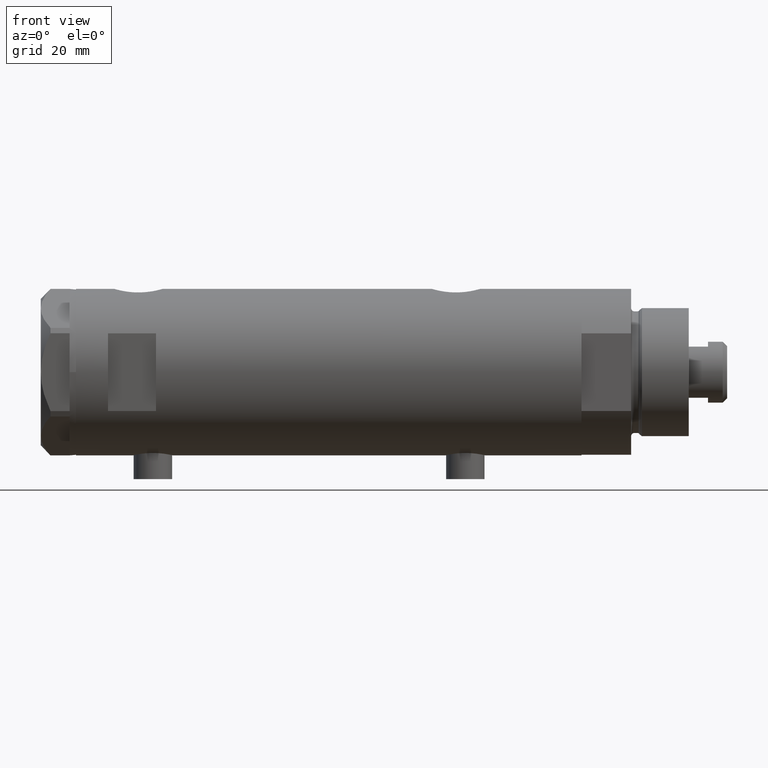
[diagram: clean part render]
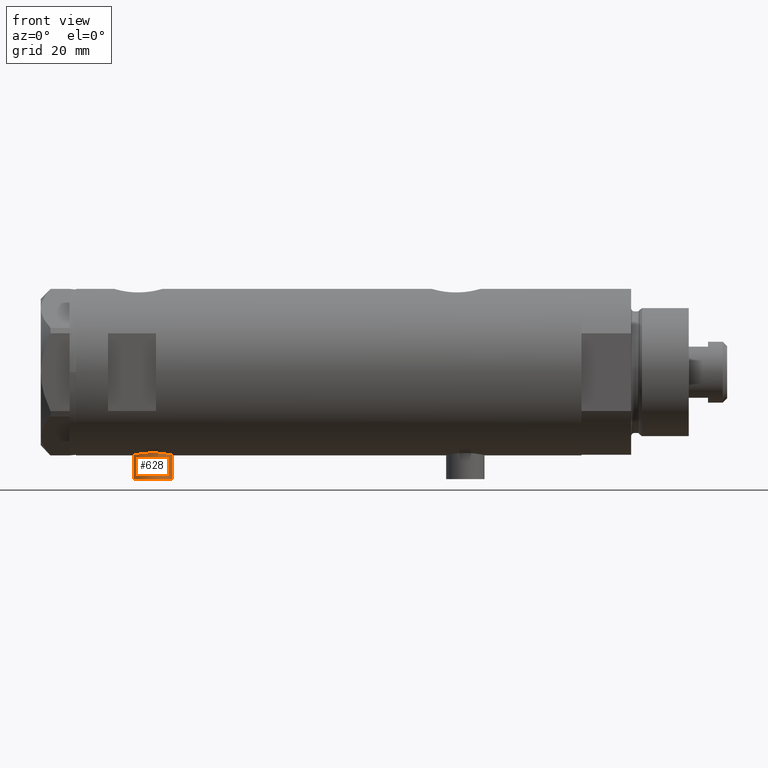
[diagram: same view with one face highlighted and labeled with its STEP entity id]
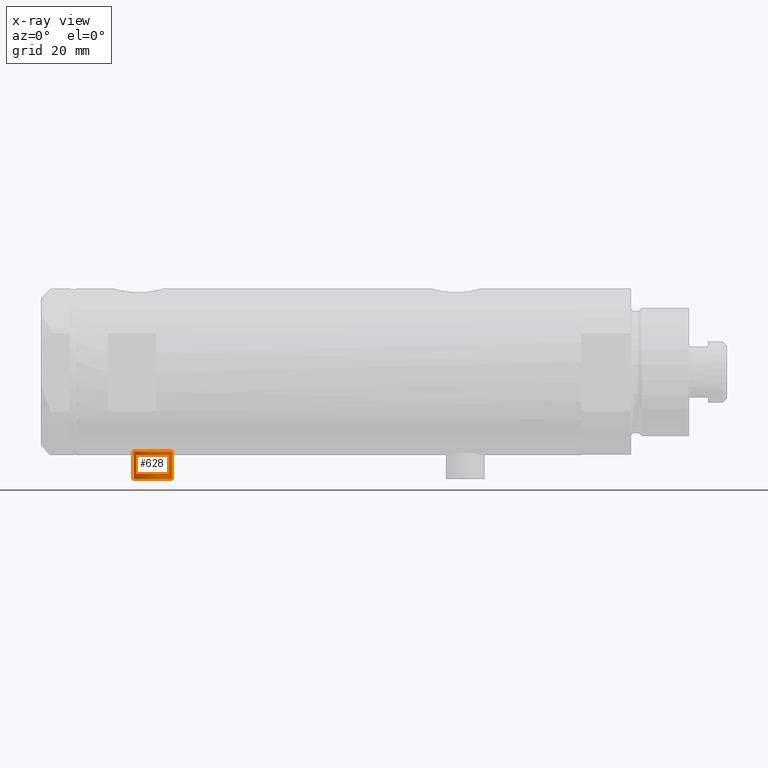
[diagram: x-ray of the same camera — body ghosted, the highlighted face saturated]
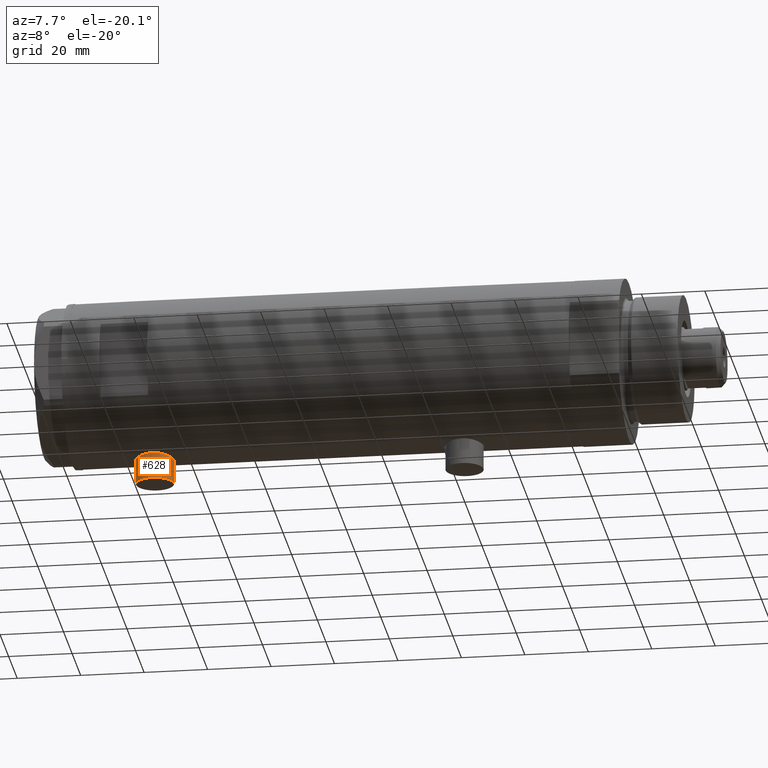
[diagram: same view with one face highlighted and labeled with its STEP entity id]
A machine part, front view. The second image highlights one B-rep face of the part: STEP entity #628.
The next image is the same camera in x-ray: the body ghosted, the highlighted face saturated — about 0% of this face is hidden behind the body in this view.
A second angle (auxiliary view) of the same face is appended — the face is thin or edge-on in the first view.
In plain terms, the highlighted cylindrical surface (edge-blend (fillet) strip) has radius 6 mm, axis along (0, 0, 1).
Its self-contained STEP definition (entity closure, byte-faithful):
#138 = CIRCLE ( 'NONE', #694, 5.999999999999998224 ) ;
#333 = DIRECTION ( 'NONE',  ( -1.000000000000000000, 0.000000000000000000, 0.000000000000000000 ) ) ;
#408 = LINE ( 'NONE', #4236, #3906 ) ;
#445 = AXIS2_PLACEMENT_3D ( 'NONE', #2696, #4194, #3005 ) ;
#628 = ADVANCED_FACE ( 'NONE', ( #2547 ), #747, .T. ) ;
#664 = EDGE_CURVE ( 'NONE', #4108, #2606, #3511, .T. ) ;
#679 = AXIS2_PLACEMENT_3D ( 'NONE', #1878, #4318, #885 ) ;
#694 = AXIS2_PLACEMENT_3D ( 'NONE', #3794, #333, #1822 ) ;
#747 = CYLINDRICAL_SURFACE ( 'NONE', #679, 5.999999999999998224 ) ;
#865 = DIRECTION ( 'NONE',  ( 1.000000000000000000, -0.000000000000000000, -0.000000000000000000 ) ) ;
#867 = CARTESIAN_POINT ( 'NONE',  ( -33.39999999999999858, 0.000000000000000000, 48.95000000000000995 ) ) ;
#885 = DIRECTION ( 'NONE',  ( 0.000000000000000000, 0.000000000000000000, -1.000000000000000000 ) ) ;
#975 = CARTESIAN_POINT ( 'NONE',  ( -33.39999999999999858, 7.347880794884107903E-16, 60.95000000000000284 ) ) ;
#1065 = CARTESIAN_POINT ( 'NONE',  ( -24.80000000000000426, 0.000000000000000000, 48.95000000000000995 ) ) ;
#1077 = VECTOR ( 'NONE', #2469, 1000.000000000000000 ) ;
#1388 = CIRCLE ( 'NONE', #445, 5.999999999999998224 ) ;
#1469 = ORIENTED_EDGE ( 'NONE', *, *, #3797, .T. ) ;
#1822 = DIRECTION ( 'NONE',  ( 0.000000000000000000, 0.000000000000000000, 1.000000000000000000 ) ) ;
#1878 = CARTESIAN_POINT ( 'NONE',  ( -33.39999999999999858, 0.000000000000000000, 54.95000000000000284 ) ) ;
#2142 = ORIENTED_EDGE ( 'NONE', *, *, #664, .T. ) ;
#2148 = ORIENTED_EDGE ( 'NONE', *, *, #2864, .F. ) ;
#2429 = EDGE_CURVE ( 'NONE', #4593, #3349, #408, .T. ) ;
#2469 = DIRECTION ( 'NONE',  ( 1.000000000000000000, -0.000000000000000000, -0.000000000000000000 ) ) ;
#2547 = FACE_OUTER_BOUND ( 'NONE', #4580, .T. ) ;
#2606 = VERTEX_POINT ( 'NONE', #1065 ) ;
#2696 = CARTESIAN_POINT ( 'NONE',  ( -33.39999999999999858, 0.000000000000000000, 54.95000000000000284 ) ) ;
#2864 = EDGE_CURVE ( 'NONE', #4108, #4593, #1388, .T. ) ;
#3005 = DIRECTION ( 'NONE',  ( 0.000000000000000000, 0.000000000000000000, 1.000000000000000000 ) ) ;
#3349 = VERTEX_POINT ( 'NONE', #4658 ) ;
#3511 = LINE ( 'NONE', #867, #1077 ) ;
#3534 = CARTESIAN_POINT ( 'NONE',  ( -33.39999999999999858, 0.000000000000000000, 48.95000000000000995 ) ) ;
#3651 = ORIENTED_EDGE ( 'NONE', *, *, #2429, .F. ) ;
#3794 = CARTESIAN_POINT ( 'NONE',  ( -24.80000000000000426, 0.000000000000000000, 54.95000000000000284 ) ) ;
#3797 = EDGE_CURVE ( 'NONE', #2606, #3349, #138, .T. ) ;
#3906 = VECTOR ( 'NONE', #865, 1000.000000000000000 ) ;
#4108 = VERTEX_POINT ( 'NONE', #3534 ) ;
#4194 = DIRECTION ( 'NONE',  ( -1.000000000000000000, 0.000000000000000000, 0.000000000000000000 ) ) ;
#4236 = CARTESIAN_POINT ( 'NONE',  ( -33.39999999999999858, 7.347880794884111847E-16, 60.95000000000000284 ) ) ;
#4318 = DIRECTION ( 'NONE',  ( 1.000000000000000000, -0.000000000000000000, -0.000000000000000000 ) ) ;
#4580 = EDGE_LOOP ( 'NONE', ( #3651, #2148, #2142, #1469 ) ) ;
#4593 = VERTEX_POINT ( 'NONE', #975 ) ;
#4658 = CARTESIAN_POINT ( 'NONE',  ( -24.80000000000000426, 7.347880794884107903E-16, 60.95000000000000284 ) ) ;